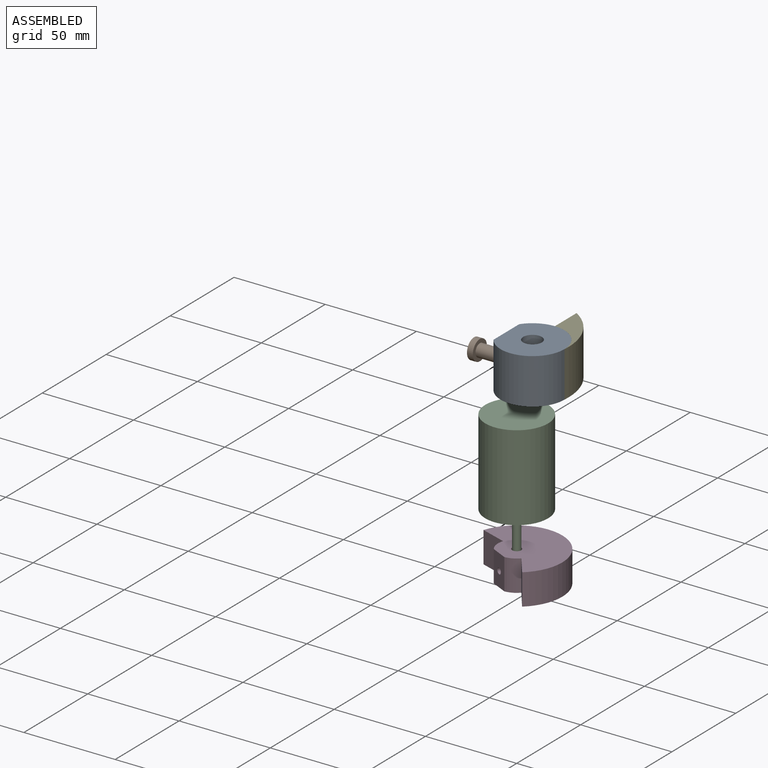
[diagram: assembled view]
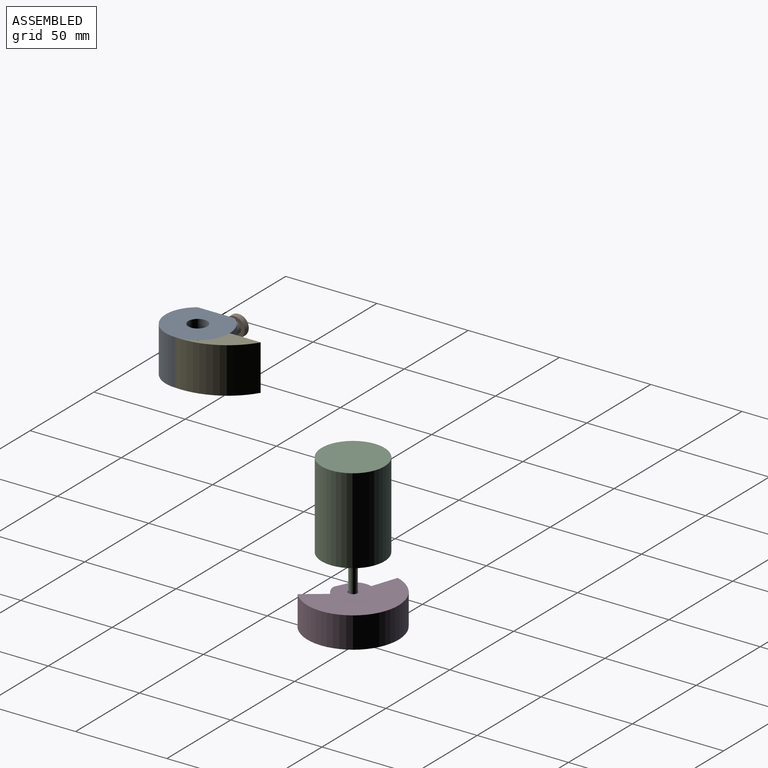
[diagram: assembled view, second angle]
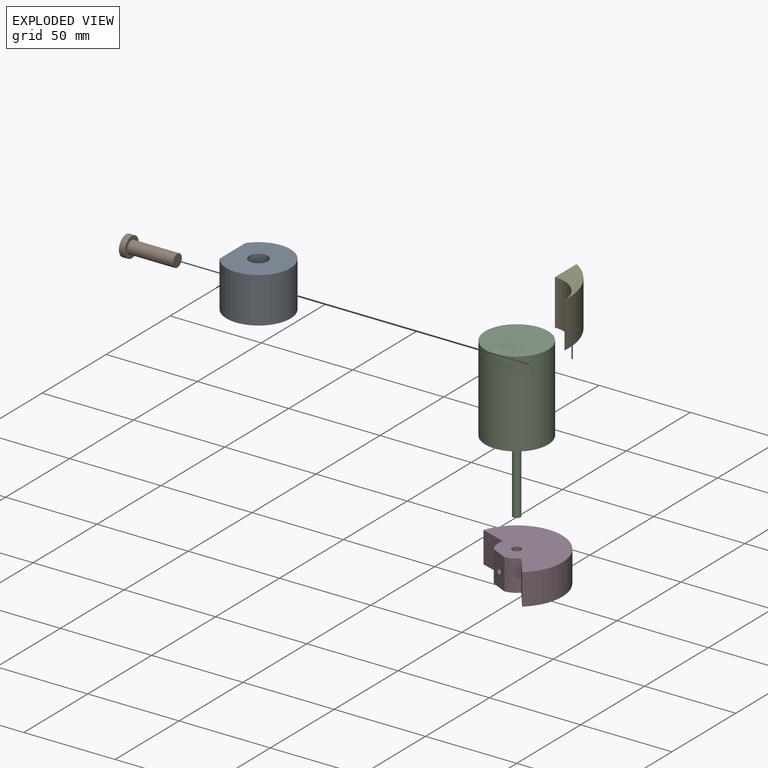
[diagram: exploded view]
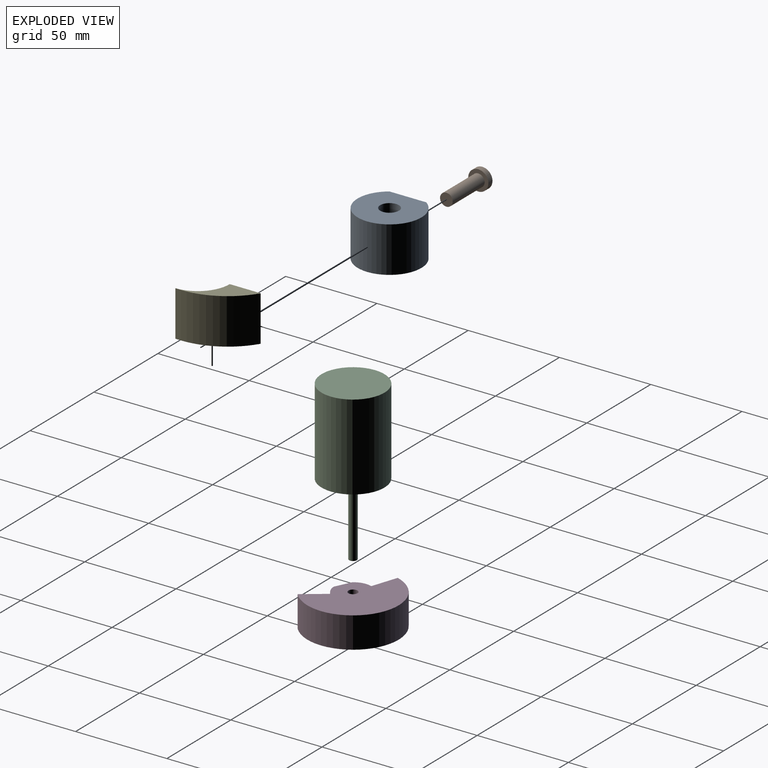
[diagram: exploded view, second angle]
ASSEMBLY  parts=5 mates=3
PART A: 6 faces, bbox 31.8x35x25 mm
  f0: cylinder r=5.14mm len=25mm, axis (0,0,-1), area 765.9mm2, adj f3,f4,f5
  f1: cylinder r=17.52mm len=35.04mm, axis (0,0,-1), area 2214.5mm2, adj f2,f3,f4
  f2: plane 25x20.18mm, normal (-1,0,0), area 465.8mm2, adj f1,f3,f4,f5
  f3: plane 35.04x31.84mm, normal (0,0,1), area 837.5mm2, adj f0,f1,f2
  f4: plane 35.04x31.84mm, normal (0,0,-1), area 837.5mm2, adj f0,f1,f2
  f5: cylinder r=3.51mm len=10.57mm, axis (-1,0,0), area 217.2mm2, adj f0,f2
PART B: 10 faces, bbox 28.2x11.1x11.1 mm
  f0: cylinder r=3.46mm len=25mm, axis (1,0,0), area 543.8mm2, adj f1,f4
  f1: plane 6.92x6.92mm, normal (1,0,0), area 37.6mm2, adj f0
  f2: cylinder r=5.53mm len=11.05mm, axis (1,0,0), area 111.1mm2, adj f3,f4
  f3: plane 11.05x11.05mm, normal (-1,0,0), area 82.5mm2, adj f2,f5,f6,f7,f8
  f4: plane 11.05x11.05mm, normal (1,0,0), area 58.3mm2, adj f0,f2
  f5: plane 9.08x2.5mm, normal (0,-1,0), area 22.7mm2, adj f3,f6,f8,f9
  f6: plane 2.5x1.47mm, normal (0,0,1), area 3.7mm2, adj f3,f5,f7,f9
  f7: plane 9.08x2.5mm, normal (0,1,0), area 22.7mm2, adj f3,f6,f8,f9
  f8: plane 2.5x1.47mm, normal (0,0,-1), area 3.7mm2, adj f3,f5,f7,f9
  f9: plane 9.08x1.47mm, normal (-1,0,0), area 13.4mm2, adj f5,f6,f7,f8
PART C: 5 faces, bbox 34.5x34.5x87 mm
  f0: cylinder r=2.12mm len=40mm, axis (0,0,-1), area 532.4mm2, adj f1,f4
  f1: plane 4.24x4.24mm, normal (0,0,-1), area 14.1mm2, adj f0
  f2: cylinder r=17.23mm len=47mm, axis (0,0,-1), area 5087.7mm2, adj f3,f4
  f3: plane 34.46x34.46mm, normal (0,0,1), area 932.5mm2, adj f2
  f4: plane 34.46x34.46mm, normal (0,0,-1), area 918.4mm2, adj f0,f2
PART D: 10 faces, bbox 37.9x50x17 mm
  f0: cylinder r=2.5mm len=17mm, axis (0,0,-1), area 258.7mm2, adj f7,f8,f9
  f1: plane 17x9.6mm, normal (-0.99,0.13,0), area 156.6mm2, adj f2,f6,f7,f8,f9
  f2: cylinder r=10.28mm len=17mm, axis (0,0,-1), area 135.8mm2, adj f1,f3,f7,f8
  f3: plane 17x12.08mm, normal (-0.82,0.58,0), area 252mm2, adj f2,f4,f7,f8
  f4: cylinder r=25mm len=50mm, axis (0,0,-1), area 1565.5mm2, adj f3,f5,f7,f8
  f5: plane 17x14.72mm, normal (-1,0,0), area 250.2mm2, adj f4,f6,f7,f8
  f6: cylinder r=10.28mm len=17mm, axis (0,0,-1), area 166.5mm2, adj f1,f5,f7,f8
  f7: plane 50x37.89mm, normal (0,0,1), area 1252.7mm2, adj f0,f1,f2,f3,f4,f5,f6
  f8: plane 50x37.89mm, normal (0,0,-1), area 1252.7mm2, adj f0,f1,f2,f3,f4,f5,f6
  f9: cylinder r=1.58mm len=7.49mm, axis (-0.99,0.13,0), area 68.1mm2, adj f0,f1
PART E: 5 faces, bbox 17.7x34.5x25 mm
  f0: cylinder r=17.52mm len=25mm, axis (0,0,-1), area 688mm2, adj f1,f2,f3,f4
  f1: cylinder r=36.76mm len=34.49mm, axis (0,0,-1), area 1018.4mm2, adj f0,f2,f3,f4
  f2: plane 25x16.97mm, normal (-1,0,0), area 424.2mm2, adj f0,f1,f3,f4
  f3: plane 34.49x17.65mm, normal (0,0,1), area 205.2mm2, adj f0,f1,f2
  f4: plane 34.49x17.65mm, normal (0,0,-1), area 205.2mm2, adj f0,f1,f2
PLACE A t=(43.82,-57.4,109.89)mm fixed
PLACE B rot(axis=(-1,0,0),29deg) t=(54.31,-63.28,111.41)mm
PLACE C t=(-1.95,-4.38,-38.46)mm fixed
PLACE D rot(axis=(0,0,1),71.6deg) t=(-1.95,-4.38,-18.2)mm
PLACE E t=(43.82,-57.4,109.89)mm
MATE cylindrical C.f0 <-> D.f0  axis (0,0,-1) through (-1.95,-4.38,-21.46)mm
MATE cylindrical B.f0 <-> A.f5  axis (1,0,0) through (27.48,-57.4,122)mm
MATE revolute A.f0 <-> E.f0  axis (0,0,-1) through (43.82,-57.4,122.39)mm
